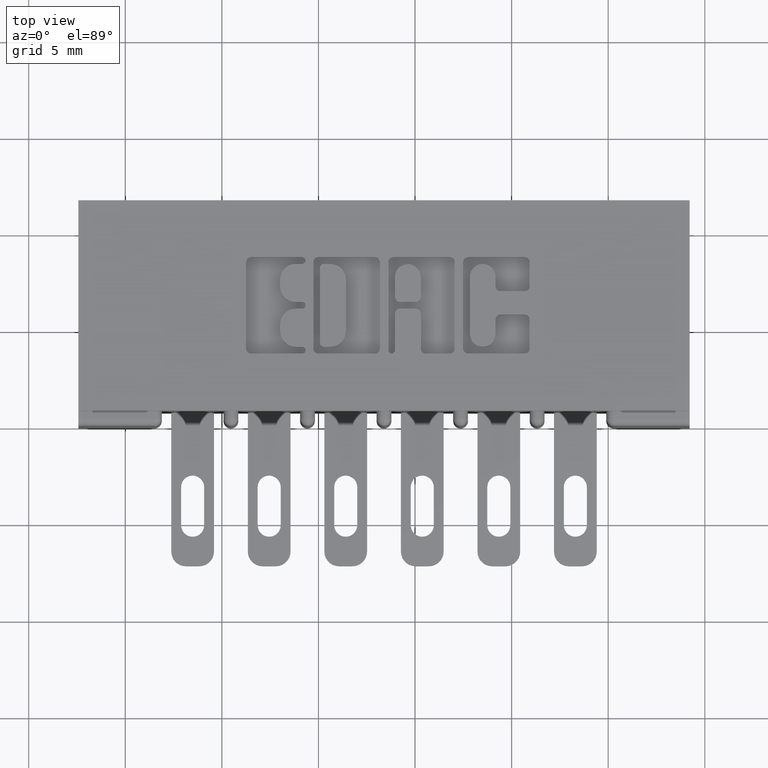
[diagram: clean part render]
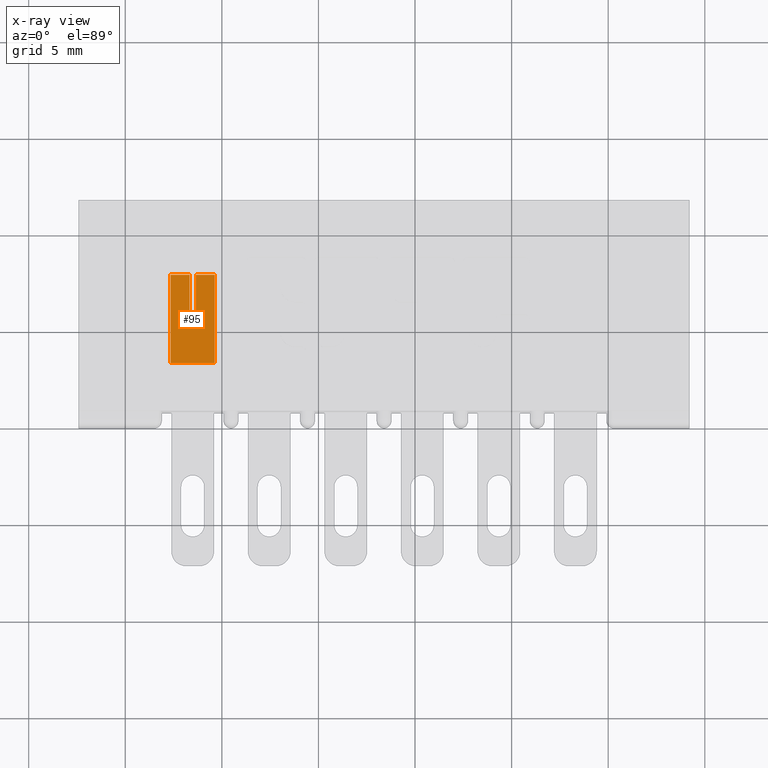
[diagram: x-ray — body ghosted, one internal face saturated and labeled with its STEP entity id]
A machine part, top view, then the same camera in x-ray: the body is ghosted and one INTERNAL B-rep face — a face not visible from any outside direction — is saturated and labeled: STEP entity #95.
In plain terms, the highlighted planar face has unit normal (-0, -0.2354, -0.9719).
Its self-contained STEP definition (entity closure, byte-faithful):
#81 = EDGE_CURVE ( 'NONE', #9873, #6013, #3853, .T. ) ;
#95 = ADVANCED_FACE ( 'NONE', ( #303 ), #6938, .T. ) ;
#158 = EDGE_CURVE ( 'NONE', #10054, #1500, #3486, .T. ) ;
#303 = FACE_OUTER_BOUND ( 'NONE', #1722, .T. ) ;
#322 = EDGE_CURVE ( 'NONE', #1500, #2759, #2871, .T. ) ;
#397 = EDGE_CURVE ( 'NONE', #1149, #6013, #3115, .T. ) ;
#534 = LINE ( 'NONE', #4849, #4569 ) ;
#660 = VECTOR ( 'NONE', #4669, 39.37007874015748900 ) ;
#835 = CARTESIAN_POINT ( 'NONE',  ( -0.01580391760783652500, 0.2306988484451966700, 0.006499999999999998800 ) ) ;
#1149 = VERTEX_POINT ( 'NONE', #3502 ) ;
#1177 = VECTOR ( 'NONE', #1667, 39.37007874015748900 ) ;
#1487 = DIRECTION ( 'NONE',  ( 0.0000000000000000000, 0.0000000000000000000, 1.000000000000000000 ) ) ;
#1500 = VERTEX_POINT ( 'NONE', #9490 ) ;
#1667 = DIRECTION ( 'NONE',  ( 0.2353798970097966700, 0.9719034438068719900, 0.0000000000000000000 ) ) ;
#1722 = EDGE_LOOP ( 'NONE', ( #9712, #5775, #3731, #7749, #10034, #4759, #9783, #7259 ) ) ;
#1860 = VERTEX_POINT ( 'NONE', #7822 ) ;
#2137 = VECTOR ( 'NONE', #4805, 39.37007874015748100 ) ;
#2280 = CARTESIAN_POINT ( 'NONE',  ( -0.08565345173365412900, -0.05771576821326100700, -0.006499999999999998800 ) ) ;
#2509 = LINE ( 'NONE', #3783, #660 ) ;
#2759 = VERTEX_POINT ( 'NONE', #9718 ) ;
#2871 = LINE ( 'NONE', #5018, #8472 ) ;
#3064 = DIRECTION ( 'NONE',  ( 0.2353798970097967000, 0.9719034438068719900, 0.0000000000000000000 ) ) ;
#3115 = LINE ( 'NONE', #2280, #4692 ) ;
#3486 = LINE ( 'NONE', #9474, #2137 ) ;
#3502 = CARTESIAN_POINT ( 'NONE',  ( -0.03534792350356425600, 0.1499999999999999900, -0.006499999999999998800 ) ) ;
#3703 = CARTESIAN_POINT ( 'NONE',  ( -0.01580391760783652500, 0.2306988484451966700, -0.006499999999999998800 ) ) ;
#3731 = ORIENTED_EDGE ( 'NONE', *, *, #7077, .T. ) ;
#3776 = CARTESIAN_POINT ( 'NONE',  ( -0.01580391760783652500, 0.2306988484451966400, -0.04500000000000006800 ) ) ;
#3783 = CARTESIAN_POINT ( 'NONE',  ( -0.08565345173365412900, -0.05771576821326100700, 0.006499999999999998800 ) ) ;
#3853 = LINE ( 'NONE', #3776, #9968 ) ;
#4092 = CARTESIAN_POINT ( 'NONE',  ( -0.09836536415986157900, -0.1102043265878454900, -0.04500000000000006800 ) ) ;
#4472 = DIRECTION ( 'NONE',  ( 0.2353798970097966700, 0.9719034438068719900, 0.0000000000000000000 ) ) ;
#4569 = VECTOR ( 'NONE', #9447, 39.37007874015748100 ) ;
#4603 = LINE ( 'NONE', #4092, #1177 ) ;
#4669 = DIRECTION ( 'NONE',  ( 0.2353798970097966700, 0.9719034438068719900, 0.0000000000000000000 ) ) ;
#4692 = VECTOR ( 'NONE', #8398, 39.37007874015748900 ) ;
#4759 = ORIENTED_EDGE ( 'NONE', *, *, #322, .F. ) ;
#4805 = DIRECTION ( 'NONE',  ( 0.0000000000000000000, 0.0000000000000000000, 1.000000000000000000 ) ) ;
#4849 = CARTESIAN_POINT ( 'NONE',  ( -0.03534792350356425600, 0.1499999999999999900, -0.006499999999999998800 ) ) ;
#5018 = CARTESIAN_POINT ( 'NONE',  ( -0.09836536415986157900, -0.1102043265878454900, 0.04499999999999992900 ) ) ;
#5076 = VECTOR ( 'NONE', #6902, 39.37007874015748100 ) ;
#5231 = CARTESIAN_POINT ( 'NONE',  ( -0.01580391760783652500, 0.2306988484451966400, -0.04500000000000006800 ) ) ;
#5641 = EDGE_CURVE ( 'NONE', #10054, #9873, #4603, .T. ) ;
#5775 = ORIENTED_EDGE ( 'NONE', *, *, #397, .F. ) ;
#6013 = VERTEX_POINT ( 'NONE', #3703 ) ;
#6043 = EDGE_CURVE ( 'NONE', #7521, #2759, #8233, .T. ) ;
#6097 = DIRECTION ( 'NONE',  ( 0.9719034438068719900, -0.2353798970097967000, 0.0000000000000000000 ) ) ;
#6546 = AXIS2_PLACEMENT_3D ( 'NONE', #6973, #6097, #3064 ) ;
#6872 = EDGE_CURVE ( 'NONE', #1860, #7521, #2509, .T. ) ;
#6902 = DIRECTION ( 'NONE',  ( 0.0000000000000000000, 0.0000000000000000000, 1.000000000000000000 ) ) ;
#6938 = PLANE ( 'NONE',  #6546 ) ;
#6973 = CARTESIAN_POINT ( 'NONE',  ( -0.09836536415986157900, -0.1102043265878454900, -0.04500000000000006800 ) ) ;
#7077 = EDGE_CURVE ( 'NONE', #1149, #1860, #534, .T. ) ;
#7259 = ORIENTED_EDGE ( 'NONE', *, *, #5641, .T. ) ;
#7521 = VERTEX_POINT ( 'NONE', #835 ) ;
#7577 = CARTESIAN_POINT ( 'NONE',  ( -0.01580391760783652500, 0.2306988484451966400, -0.04500000000000006800 ) ) ;
#7749 = ORIENTED_EDGE ( 'NONE', *, *, #6872, .T. ) ;
#7822 = CARTESIAN_POINT ( 'NONE',  ( -0.03534792350356425600, 0.1499999999999999900, 0.006499999999999998800 ) ) ;
#8233 = LINE ( 'NONE', #5231, #5076 ) ;
#8398 = DIRECTION ( 'NONE',  ( 0.2353798970097966700, 0.9719034438068719900, 0.0000000000000000000 ) ) ;
#8472 = VECTOR ( 'NONE', #4472, 39.37007874015748900 ) ;
#9414 = CARTESIAN_POINT ( 'NONE',  ( -0.05956636809388601800, 0.05000000000000003100, -0.04500000000000006800 ) ) ;
#9447 = DIRECTION ( 'NONE',  ( -0.0000000000000000000, -0.0000000000000000000, 1.000000000000000000 ) ) ;
#9474 = CARTESIAN_POINT ( 'NONE',  ( -0.05956636809388601800, 0.05000000000000003100, -0.04500000000000006800 ) ) ;
#9490 = CARTESIAN_POINT ( 'NONE',  ( -0.05956636809388601800, 0.05000000000000000300, 0.04499999999999992900 ) ) ;
#9712 = ORIENTED_EDGE ( 'NONE', *, *, #81, .T. ) ;
#9718 = CARTESIAN_POINT ( 'NONE',  ( -0.01580391760783652500, 0.2306988484451966400, 0.04499999999999992900 ) ) ;
#9783 = ORIENTED_EDGE ( 'NONE', *, *, #158, .F. ) ;
#9873 = VERTEX_POINT ( 'NONE', #7577 ) ;
#9968 = VECTOR ( 'NONE', #1487, 39.37007874015748100 ) ;
#10034 = ORIENTED_EDGE ( 'NONE', *, *, #6043, .T. ) ;
#10054 = VERTEX_POINT ( 'NONE', #9414 ) ;